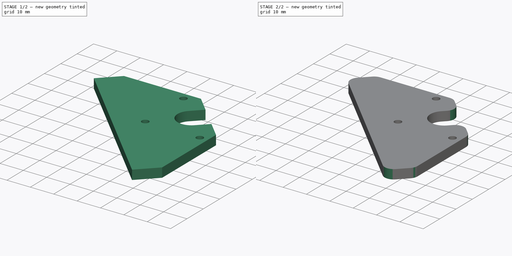
[diagram: build sequence overview — one tinted view per stage of 2, left to right]
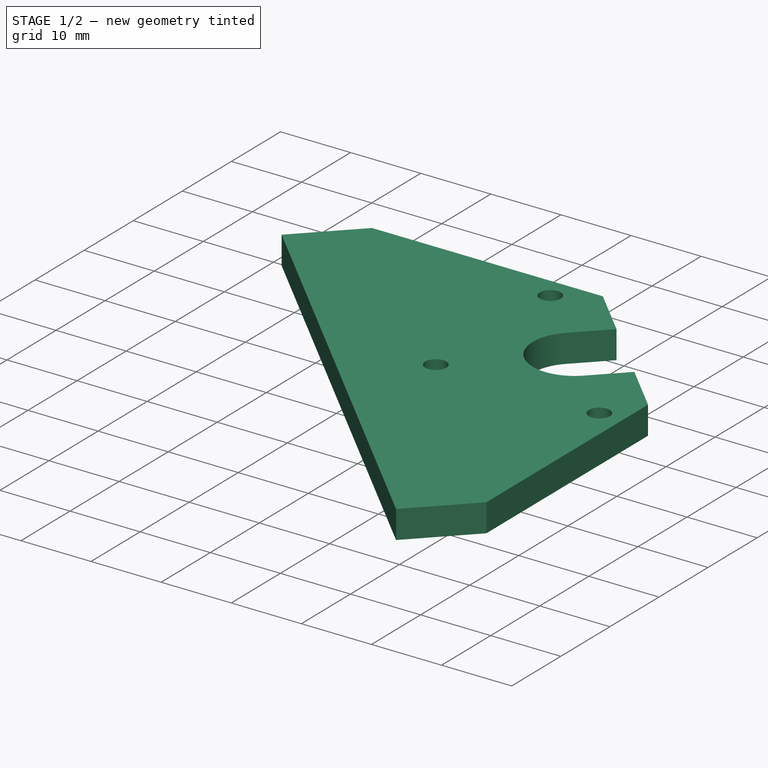
[diagram: stage 1 of 2 — iso view after this stage's code; geometry added in this stage tinted green]
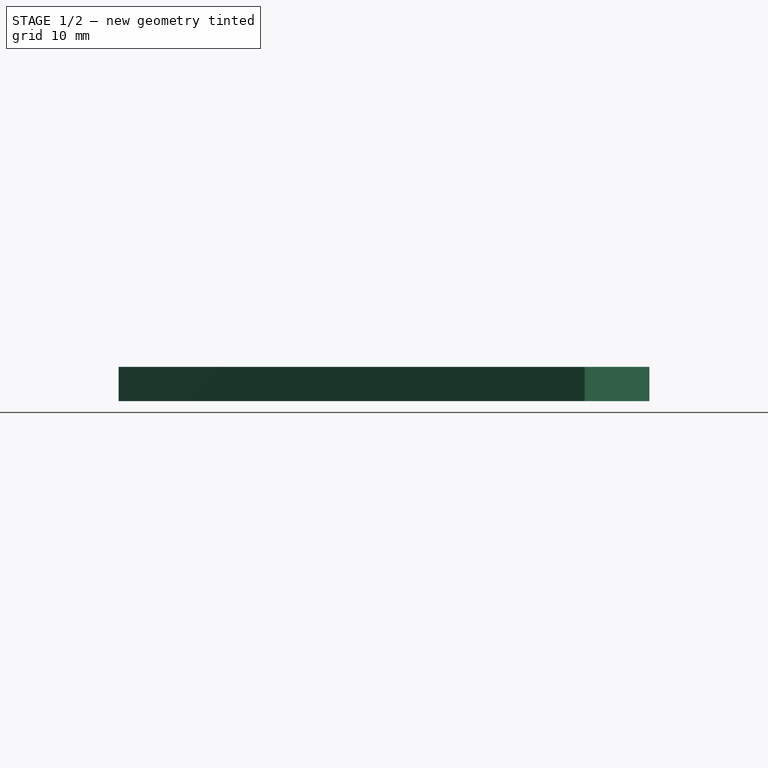
[diagram: stage 1 of 2 — front view after this stage's code; geometry added in this stage tinted green]
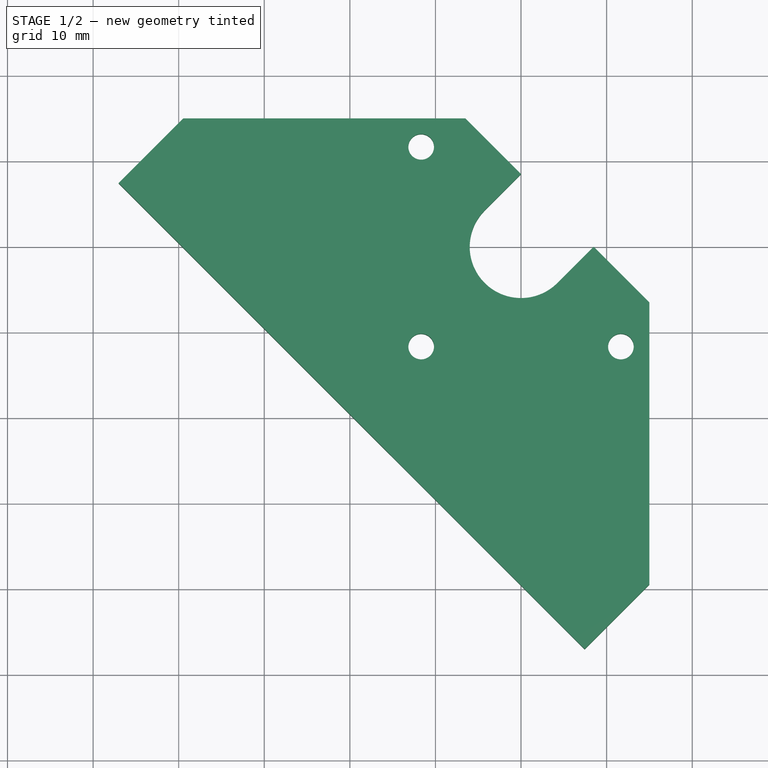
[diagram: stage 1 of 2 — top view after this stage's code; geometry added in this stage tinted green]
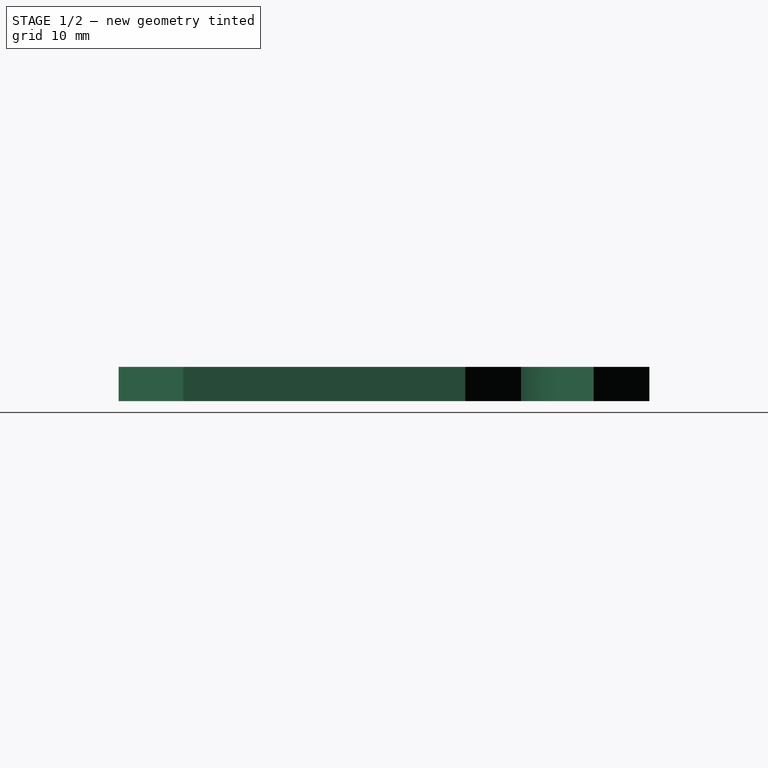
[diagram: stage 1 of 2 — right view after this stage's code; geometry added in this stage tinted green]
FCSTD DOCUMENT  (FreeCAD 0.18R16093 (Git))
Label: Plato_Electronica
License: All rights reserved
LicenseURL: http://en.wikipedia.org/wiki/All_rights_reserved
objects: Sketcher::SketchObject×1, PartDesign::Pad×1, PartDesign::Fillet×1, PartDesign::Body×1
note: 5 computed .brp shape members not serialized (recipe doc carries the construction recipe); baked Part::Feature solids carry a one-line shape summary decoded from their .brp

FEATURE [Sketcher::SketchObject] Sketch104
  MapMode = 5
  Support = -> [XY_Plane019]
  sketch-geometry (22):
    g0: LineSegment StartX=8.48528 StartY=0 StartZ=0 EndX=15 EndY=-6.51472 EndZ=0
    g1: LineSegment StartX=-6.51472 StartY=15 StartZ=0 EndX=0 EndY=8.48528 EndZ=0
    g2: LineSegment StartX=0 StartY=8.48528 StartZ=0 EndX=-4.24264 EndY=4.24264 EndZ=0
    g3: LineSegment StartX=4.24264 StartY=-4.24264 StartZ=0 EndX=8.48528 EndY=0 EndZ=0
    g4: ArcOfCircle CenterX=0 CenterY=0 CenterZ=0 NormalX=0 NormalY=0 NormalZ=1 AngleXU=0 Radius=6 StartAngle=2.35619 EndAngle=5.49779
    g5: LineSegment [constr] StartX=-15 StartY=15 StartZ=0 EndX=15 EndY=15 EndZ=0
    g6: LineSegment [constr] StartX=15 StartY=15 StartZ=0 EndX=15 EndY=-15 EndZ=0
    g7: LineSegment [constr] StartX=15 StartY=-15 StartZ=0 EndX=-15 EndY=-15 EndZ=0
    g8: LineSegment [constr] StartX=-15 StartY=-15 StartZ=0 EndX=-15 EndY=15 EndZ=0
    g9: Circle CenterX=-11.6673 CenterY=11.6673 CenterZ=0 NormalX=0 NormalY=0 NormalZ=1 AngleXU=0 Radius=1.5
    g10: Circle CenterX=-11.6673 CenterY=-11.6673 CenterZ=0 NormalX=0 NormalY=0 NormalZ=1 AngleXU=0 Radius=1.5
    g11: Circle CenterX=11.6673 CenterY=-11.6673 CenterZ=0 NormalX=0 NormalY=0 NormalZ=1 AngleXU=0 Radius=1.5
    g12: LineSegment [constr] StartX=-11.6673 StartY=11.6673 StartZ=0 EndX=-11.6673 EndY=-11.6673 EndZ=0
    g13: LineSegment [constr] StartX=11.6673 StartY=-11.6673 StartZ=0 EndX=-11.6673 EndY=-11.6673 EndZ=0
    g14: LineSegment [constr] StartX=-15 StartY=15 StartZ=0 EndX=15 EndY=-15 EndZ=0
    g15: LineSegment [constr] StartX=-15 StartY=-15 StartZ=0 EndX=0 EndY=0 EndZ=0
    g16: LineSegment StartX=-6.51472 StartY=15 StartZ=0 EndX=-39.4472 EndY=15 EndZ=0
    g17: LineSegment StartX=-39.4472 StartY=15 StartZ=0 EndX=-47.0226 EndY=7.42462 EndZ=0
    g18: LineSegment StartX=-47.0226 StartY=7.42462 StartZ=0 EndX=7.42462 EndY=-47.0226 EndZ=0
    g19: LineSegment StartX=7.42462 StartY=-47.0226 StartZ=0 EndX=15 EndY=-39.4472 EndZ=0
    g20: LineSegment StartX=15 StartY=-39.4472 StartZ=0 EndX=15 EndY=-6.51472 EndZ=0
    g21: GeomPoint X=-4.24264 Y=-4.24264 Z=0
  constraints (58):
    c: Coincident(g1,g2)
    c: Angle(g1,g2) = 1.5708
    c: Angle(g3,g0) = 1.5708
    c: Tangent(g2,g4) = -1.5708
    c: Tangent(g3,g4) = -1.5708
    c: Coincident(g4,g-1)
    c: PointOnObject(g1,g-2)
    c: PointOnObject(g3,g-1)
    c: Coincident(g0,g3)
    c: DistanceY(g4,g1) = 15
    c: DistanceX(g4,g0) = 15
    c: Radius(g4) = 6
    c: Coincident(g5,g6)
    c: Coincident(g6,g7)
    c: Coincident(g7,g8)
    c: Coincident(g8,g5)
    c: Horizontal(g5)
    c: Horizontal(g7)
    c: Vertical(g6)
    c: Vertical(g8)
    c: DistanceX(g5,g5) = 30
    c: DistanceY(g6,g6) = 30
    c: Coincident(g10,g13)
    c: Coincident(g10,g12)
    c: Radius(g11) = 1.5
    c: Radius(g9) = 1.5
    c: Horizontal(g13)
    c: Vertical(g12)
    c: Coincident(g12,g9)
    c: Coincident(g11,g13)
    c: Coincident(g15,g7)
    c: Coincident(g14,g5)
    c: Coincident(g14,g6)
    c: Coincident(g15,g4)
    c: PointOnObject(g11,g14)
    c: PointOnObject(g9,g14)
    c: PointOnObject(g10,g15)
    c: Coincident(g16,g17)
    c: Coincident(g17,g18)
    c: Coincident(g18,g19)
    c: Coincident(g19,g20)
    c: Coincident(g20,g0)
    c: Vertical(g20)
    c: PointOnObject(g6,g20)
    c: Coincident(g16,g1)
    c: Horizontal(g16)
    c: PointOnObject(g5,g16)
    c: Angle(g18,g17) = 1.5708
    c: Angle(g19,g18) = 1.5708
    c: Distance(g18) = 77
    c: Symmetric(g17,g18,g15)
    c: PointOnObject(g21,g15)
    c: PointOnObject(g21,g4)
    c: Distance(g21,g18) = 22
    c: PointOnObject(g3,g14)
    c: PointOnObject(g2,g14)
    c: Diameter(g10) = 3
    c: Distance(g21,g10) = 10.5
FEATURE [PartDesign::Pad] Pad053
  Length = 4
  Length2 = 100
  Profile = -> Sketch104
  Type = 0
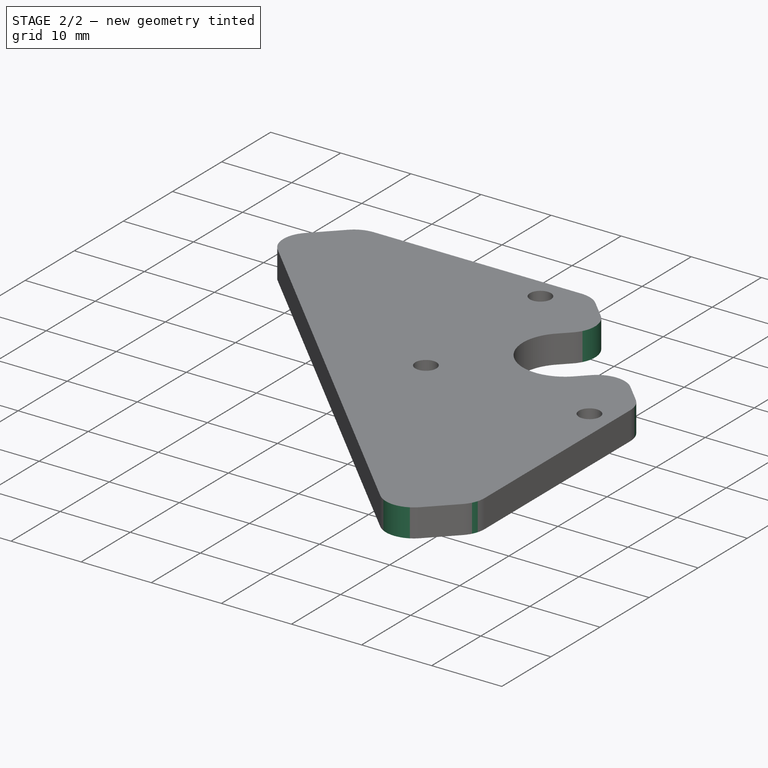
[diagram: stage 2 of 2 — iso view after this stage's code; geometry added in this stage tinted green]
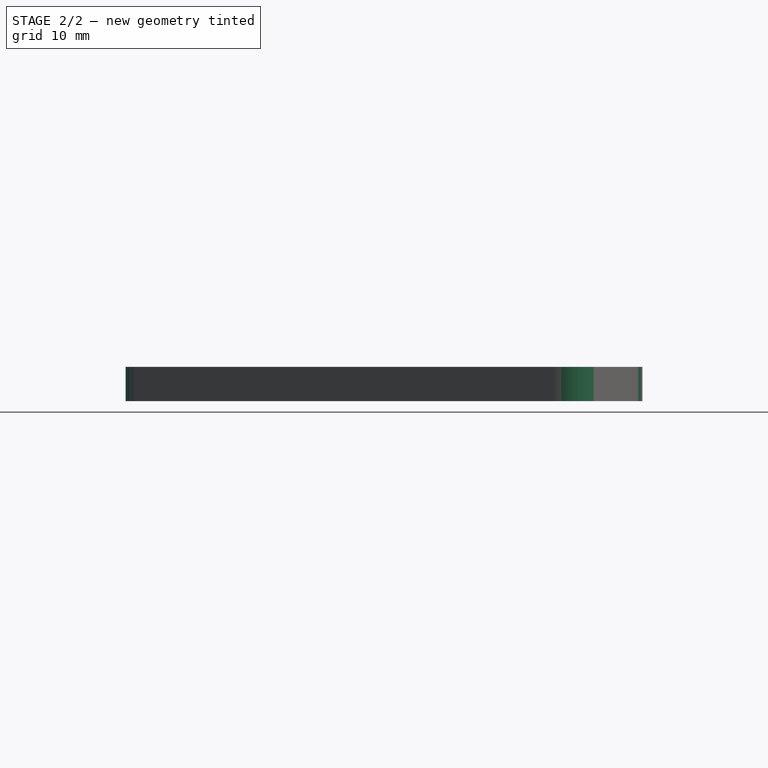
[diagram: stage 2 of 2 — front view after this stage's code; geometry added in this stage tinted green]
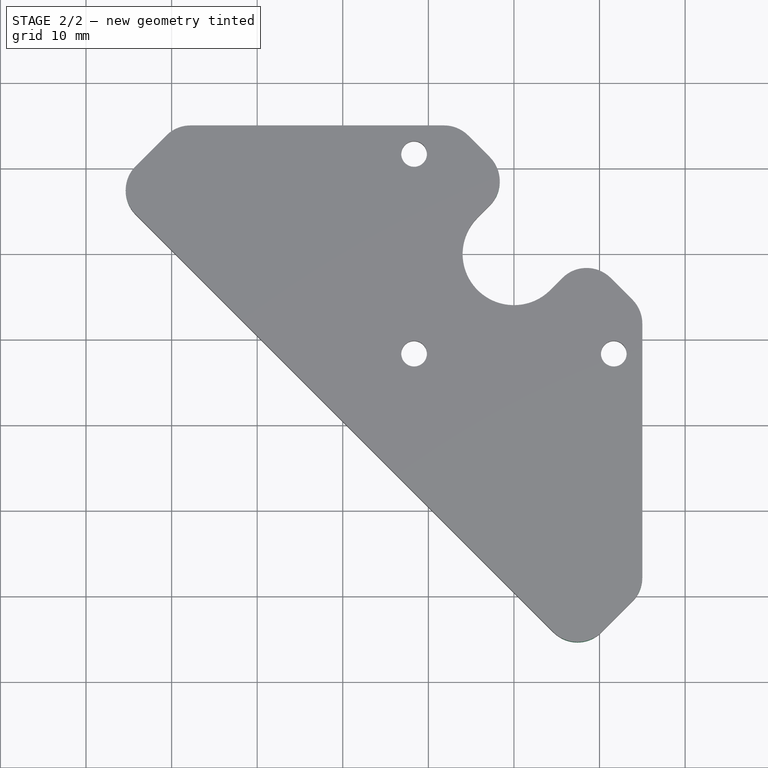
[diagram: stage 2 of 2 — top view after this stage's code; geometry added in this stage tinted green]
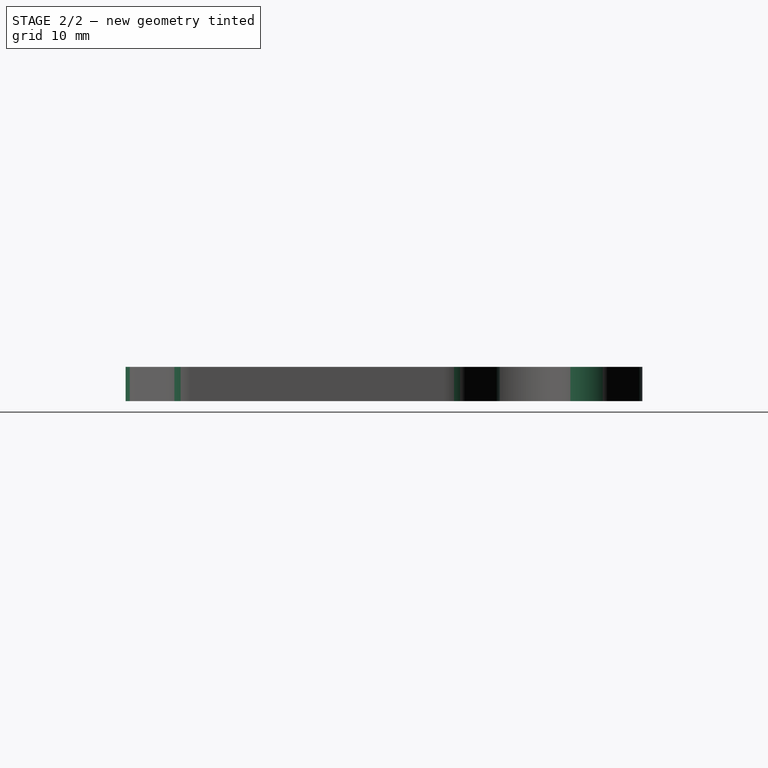
[diagram: stage 2 of 2 — right view after this stage's code; geometry added in this stage tinted green]
FEATURE [PartDesign::Fillet] Fillet082
  Base = -> Pad053 [Edge20,Edge17,Edge23,Edge26,Edge14,Edge1,Edge11,Edge2]
  BaseFeature = -> Pad053
  Radius = 4
FEATURE [PartDesign::Body] Body019  label="Plato_Electronica"
  Group = -> [Sketch104,Pad053,Fillet082]
  Origin = -> Origin019
  Placement = pos=(0,0,236) rot=(0,0,1;0rad)
  Tip = -> Fillet082
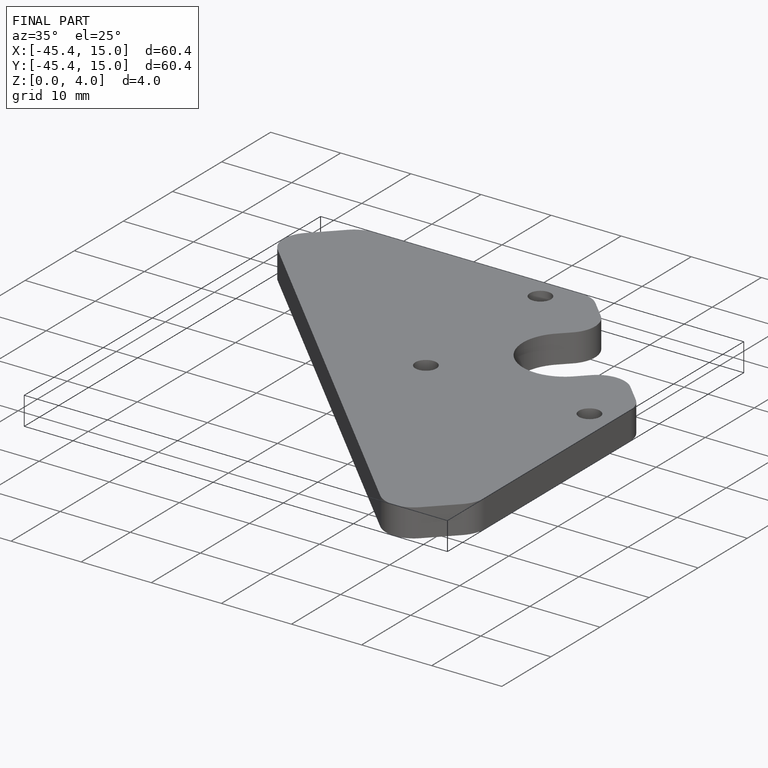
[diagram: finished part — iso view with bounding-box wireframe]
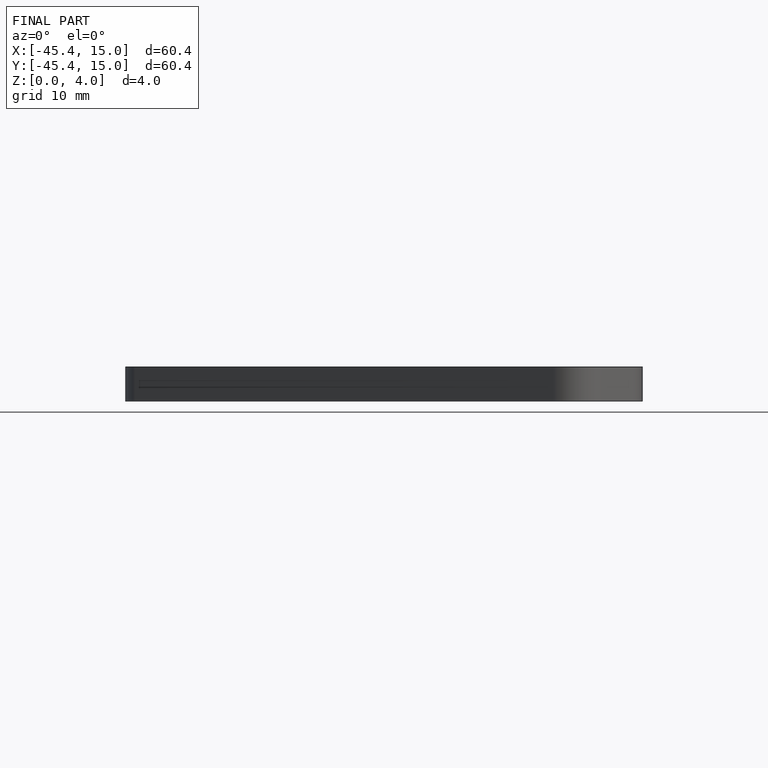
[diagram: finished part — front view with bounding-box wireframe]
